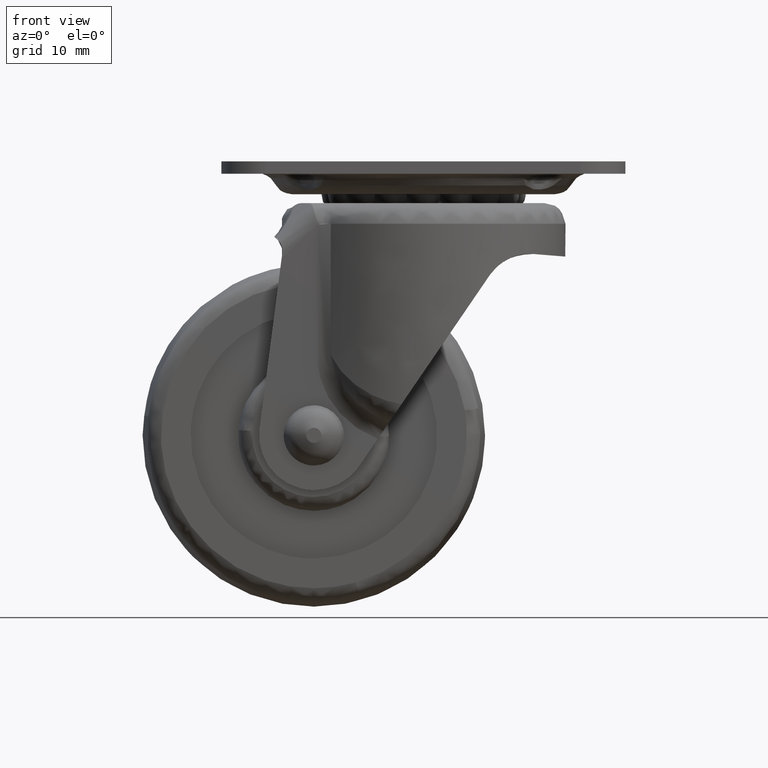
[diagram: clean part render]
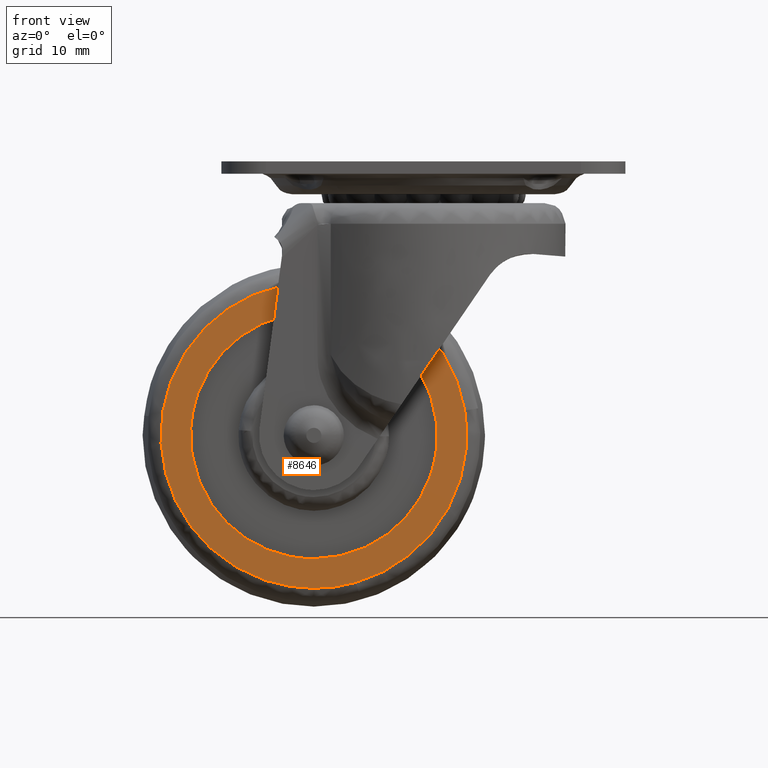
[diagram: same view with one face highlighted and labeled with its STEP entity id]
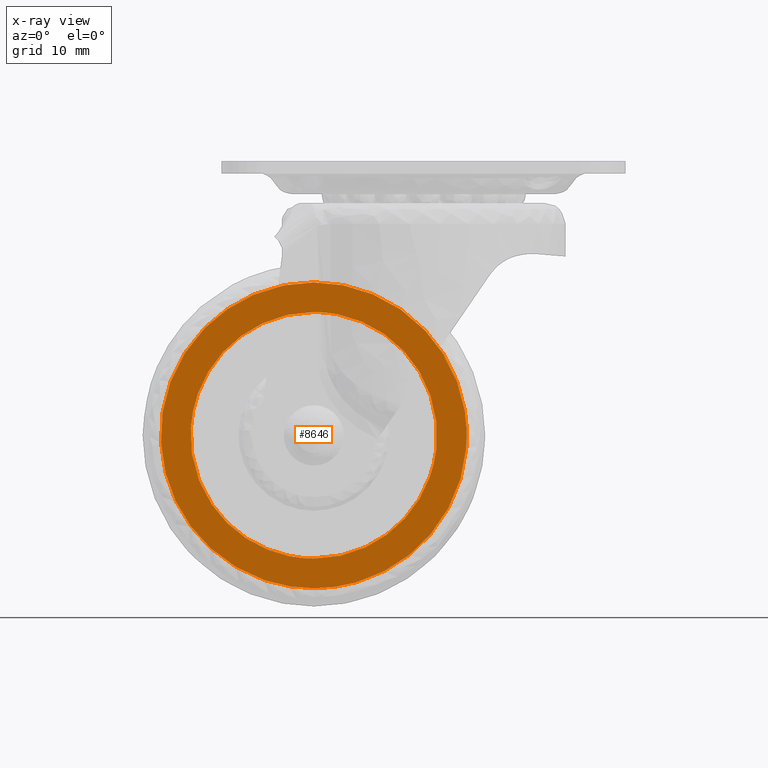
[diagram: x-ray of the same camera — body ghosted, the highlighted face saturated]
A machine part, front view. The second image highlights one B-rep face of the part: STEP entity #8646.
The next image is the same camera in x-ray: the body ghosted, the highlighted face saturated — about 0% of this face is hidden behind the body in this view.
In plain terms, the highlighted face is a freeform B-spline surface patch.
Its self-contained STEP definition (entity closure, byte-faithful):
#7301=CARTESIAN_POINT('',(1.874173226392645,-10.000000000001380,-42.124601485617461));
#7302=VERTEX_POINT('',#7301);
#7303=CARTESIAN_POINT('',(-16.0,-10.0,-22.0));
#7304=VERTEX_POINT('',#7303);
#7305=CARTESIAN_POINT('',(1.874173226392645,-10.000000000001382,-42.124601485617461));
#7306=CARTESIAN_POINT('',(1.999999999999998,-10.0,-41.066026706727989));
#7307=CARTESIAN_POINT('',(1.999999999999998,-10.0,-40.0));
#7308=CARTESIAN_POINT('',(1.999999999999999,-10.0,-22.000000000000007));
#7309=CARTESIAN_POINT('',(-16.0,-10.0,-22.0));
#7317=(BOUNDED_CURVE()B_SPLINE_CURVE(2,(#7305,#7306,#7307,#7308,#7309),.UNSPECIFIED.,.F.,.U.)B_SPLINE_CURVE_WITH_KNOTS((3,2,3),(0.229562612867811,0.250000000000000,0.500000000000000),.UNSPECIFIED.)CURVE()GEOMETRIC_REPRESENTATION_ITEM()RATIONAL_B_SPLINE_CURVE((0.956027027324017,0.976056111594866,1.0,0.707106781186547,1.0))REPRESENTATION_ITEM(''));
#7318=EDGE_CURVE('',#7302,#7304,#7317,.T.);
#7320=CARTESIAN_POINT('',(-33.966427470612430,-9.999999999998448,-38.901144257466527));
#7321=VERTEX_POINT('',#7320);
#7322=CARTESIAN_POINT('',(-16.0,-10.0,-22.0));
#7323=CARTESIAN_POINT('',(-32.932726171179382,-10.000000000000002,-22.0));
#7324=CARTESIAN_POINT('',(-33.966427470612430,-9.999999999998448,-38.901144257466527));
#7332=(BOUNDED_CURVE()B_SPLINE_CURVE(2,(#7322,#7323,#7324),.UNSPECIFIED.,.F.,.U.)B_SPLINE_CURVE_WITH_KNOTS((3,3),(0.500000000000000,0.739333134814399),.UNSPECIFIED.)CURVE()GEOMETRIC_REPRESENTATION_ITEM()RATIONAL_B_SPLINE_CURVE((1.0,0.719603791101986,0.976072411529051))REPRESENTATION_ITEM(''));
#7333=EDGE_CURVE('',#7304,#7321,#7332,.T.);
#7400=CARTESIAN_POINT('',(-16.0,-10.0,-57.999999999999993));
#7401=VERTEX_POINT('',#7400);
#7402=CARTESIAN_POINT('',(-16.0,-10.0,-57.999999999999993));
#7403=CARTESIAN_POINT('',(-0.012845257825291,-10.0,-57.999999999999993));
#7404=CARTESIAN_POINT('',(1.874173226392645,-10.000000000001382,-42.124601485617461));
#7412=(BOUNDED_CURVE()B_SPLINE_CURVE(2,(#7402,#7403,#7404),.UNSPECIFIED.,.F.,.U.)B_SPLINE_CURVE_WITH_KNOTS((3,3),(0.0,0.229562612867811),.UNSPECIFIED.)CURVE()GEOMETRIC_REPRESENTATION_ITEM()RATIONAL_B_SPLINE_CURVE((1.0,0.731050669591682,0.956027027324017))REPRESENTATION_ITEM(''));
#7413=EDGE_CURVE('',#7401,#7302,#7412,.T.);
#7447=CARTESIAN_POINT('',(-33.966427470612423,-9.999999999998448,-38.901144257466534));
#7448=CARTESIAN_POINT('',(-34.000000000000007,-9.999999999999998,-39.450059270363489));
#7449=CARTESIAN_POINT('',(-34.0,-10.0,-40.0));
#7450=CARTESIAN_POINT('',(-34.000000000000014,-10.0,-57.999999999999993));
#7451=CARTESIAN_POINT('',(-16.0,-10.0,-57.999999999999993));
#7459=(BOUNDED_CURVE()B_SPLINE_CURVE(2,(#7447,#7448,#7449,#7450,#7451),.UNSPECIFIED.,.F.,.U.)B_SPLINE_CURVE_WITH_KNOTS((3,2,3),(0.739333134814399,0.750000000000000,1.0),.UNSPECIFIED.)CURVE()GEOMETRIC_REPRESENTATION_ITEM()RATIONAL_B_SPLINE_CURVE((0.976072411529051,0.987502990084561,1.0,0.707106781186547,1.0))REPRESENTATION_ITEM(''));
#7460=EDGE_CURVE('',#7321,#7401,#7459,.T.);
#8102=CARTESIAN_POINT('',(6.031359189070851,-9.999999999999982,-36.368532636996761));
#8103=VERTEX_POINT('',#8102);
#8117=CARTESIAN_POINT('',(-9.848987291336417,-9.999999999999982,-61.464700924437793));
#8118=VERTEX_POINT('',#8117);
#8119=CARTESIAN_POINT('',(-9.848987291336417,-9.999999999999982,-61.464700924437786));
#8120=CARTESIAN_POINT('',(6.328644000000000,-9.999999999999998,-56.828772562710064));
#8121=CARTESIAN_POINT('',(6.328644000000002,-10.0,-40.0));
#8122=CARTESIAN_POINT('',(6.328644000000001,-10.0,-38.172097923458139));
#8123=CARTESIAN_POINT('',(6.031359189070851,-9.999999999999982,-36.368532636996761));
#8131=(BOUNDED_CURVE()B_SPLINE_CURVE(2,(#8119,#8120,#8121,#8122,#8123),.UNSPECIFIED.,.F.,.U.)B_SPLINE_CURVE_WITH_KNOTS((3,2,3),(0.046928272031049,0.250000000000000,0.277993891200872),.UNSPECIFIED.)CURVE()GEOMETRIC_REPRESENTATION_ITEM()RATIONAL_B_SPLINE_CURVE((0.910681108908084,0.762086671780656,1.0,0.967203116396252,0.941751131923153))REPRESENTATION_ITEM(''));
#8132=EDGE_CURVE('',#8118,#8103,#8131,.T.);
#8201=CARTESIAN_POINT('',(-16.0,-10.0,-62.328643999999997));
#8202=VERTEX_POINT('',#8201);
#8203=CARTESIAN_POINT('',(-16.0,-10.0,-62.328643999999997));
#8204=CARTESIAN_POINT('',(-12.863820901658686,-10.0,-62.328644000000011));
#8205=CARTESIAN_POINT('',(-9.848987291336417,-9.999999999999982,-61.464700924437786));
#8213=(BOUNDED_CURVE()B_SPLINE_CURVE(2,(#8203,#8204,#8205),.UNSPECIFIED.,.F.,.U.)B_SPLINE_CURVE_WITH_KNOTS((3,3),(0.0,0.046928272031049),.UNSPECIFIED.)CURVE()GEOMETRIC_REPRESENTATION_ITEM()RATIONAL_B_SPLINE_CURVE((1.0,0.945020109405891,0.910681108908084))REPRESENTATION_ITEM(''));
#8214=EDGE_CURVE('',#8202,#8118,#8213,.T.);
#8216=CARTESIAN_POINT('',(-16.0,-10.0,-17.671355999999999));
#8217=VERTEX_POINT('',#8216);
#8218=CARTESIAN_POINT('',(-16.0,-10.0,-17.671355999999999));
#8219=CARTESIAN_POINT('',(-38.328643999999997,-10.000000000000002,-17.671356000000007));
#8220=CARTESIAN_POINT('',(-38.328643999999997,-10.0,-40.0));
#8221=CARTESIAN_POINT('',(-38.328643999999997,-10.000000000000002,-62.328643999999997));
#8222=CARTESIAN_POINT('',(-16.0,-10.0,-62.328643999999997));
#8230=(BOUNDED_CURVE()B_SPLINE_CURVE(2,(#8218,#8219,#8220,#8221,#8222),.UNSPECIFIED.,.F.,.U.)B_SPLINE_CURVE_WITH_KNOTS((3,2,3),(0.500000000000000,0.750000000000000,1.0),.UNSPECIFIED.)CURVE()GEOMETRIC_REPRESENTATION_ITEM()RATIONAL_B_SPLINE_CURVE((1.0,0.707106781186548,1.0,0.707106781186548,1.0))REPRESENTATION_ITEM(''));
#8231=EDGE_CURVE('',#8217,#8202,#8230,.T.);
#8233=CARTESIAN_POINT('',(6.031359189070851,-9.999999999999982,-36.368532636996761));
#8234=CARTESIAN_POINT('',(2.949470950621178,-10.000000000000002,-17.671355999999999));
#8235=CARTESIAN_POINT('',(-16.0,-10.0,-17.671355999999999));
#8243=(BOUNDED_CURVE()B_SPLINE_CURVE(2,(#8233,#8234,#8235),.UNSPECIFIED.,.F.,.U.)B_SPLINE_CURVE_WITH_KNOTS((3,3),(0.277993891200872,0.500000000000000),.UNSPECIFIED.)CURVE()GEOMETRIC_REPRESENTATION_ITEM()RATIONAL_B_SPLINE_CURVE((0.941751131923153,0.739903664790295,1.0))REPRESENTATION_ITEM(''));
#8244=EDGE_CURVE('',#8103,#8217,#8243,.T.);
#8629=CARTESIAN_POINT('',(-40.559097659319491,-10.0,-15.440724550954490));
#8630=CARTESIAN_POINT('',(-40.559097659319491,-10.0,-64.559276646847323));
#8631=CARTESIAN_POINT('',(8.555539503013751,-10.0,-15.440724550954490));
#8632=CARTESIAN_POINT('',(8.555539503013751,-10.0,-64.559276646847323));
#8633=B_SPLINE_SURFACE_WITH_KNOTS('',1,1,((#8629,#8631),(#8630,#8632)),.UNSPECIFIED.,.F.,.F.,.U.,(2,2),(2,2),(0.0,49.118552095892831),(0.0,49.114637162333239),.UNSPECIFIED.);
#8634=ORIENTED_EDGE('',*,*,#8214,.T.);
#8635=ORIENTED_EDGE('',*,*,#8132,.T.);
#8636=ORIENTED_EDGE('',*,*,#8244,.T.);
#8637=ORIENTED_EDGE('',*,*,#8231,.T.);
#8638=EDGE_LOOP('',(#8634,#8635,#8636,#8637));
#8639=FACE_OUTER_BOUND('',#8638,.T.);
#8640=ORIENTED_EDGE('',*,*,#7333,.F.);
#8641=ORIENTED_EDGE('',*,*,#7318,.F.);
#8642=ORIENTED_EDGE('',*,*,#7413,.F.);
#8643=ORIENTED_EDGE('',*,*,#7460,.F.);
#8644=EDGE_LOOP('',(#8640,#8641,#8642,#8643));
#8645=FACE_BOUND('',#8644,.T.);
#8646=ADVANCED_FACE('',(#8639,#8645),#8633,.T.);